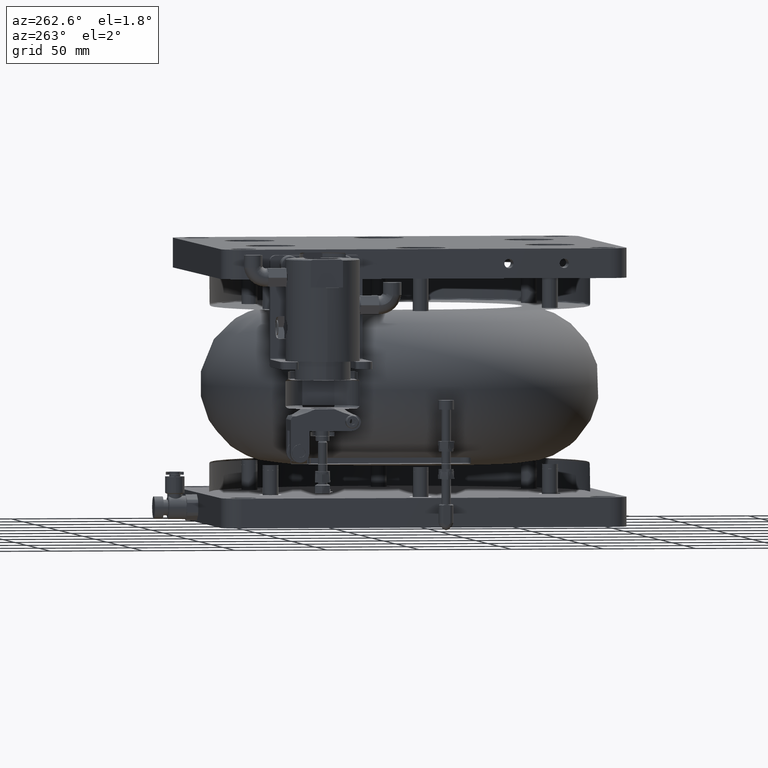
[diagram: clean part render]
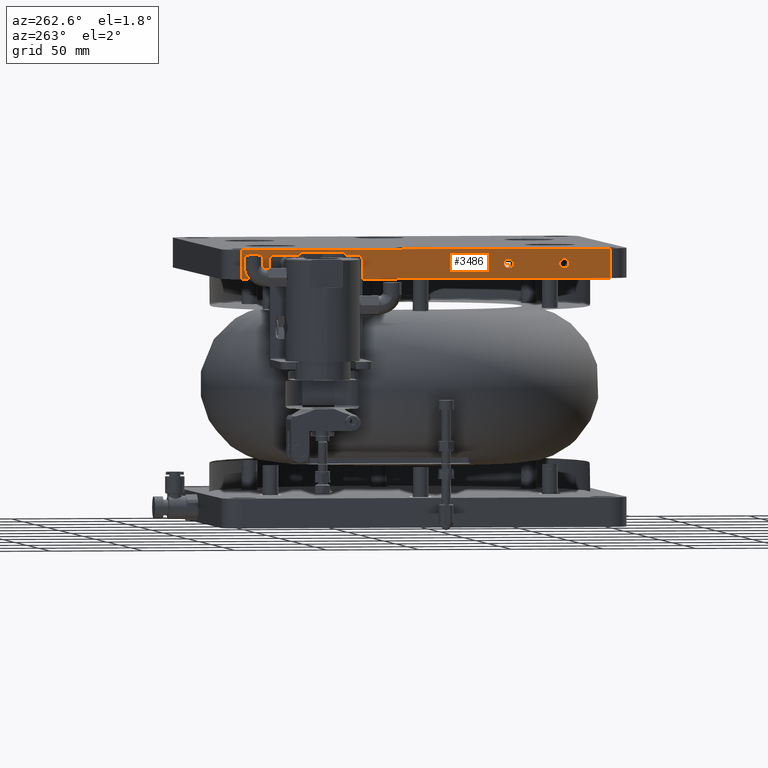
[diagram: same view with one face highlighted and labeled with its STEP entity id]
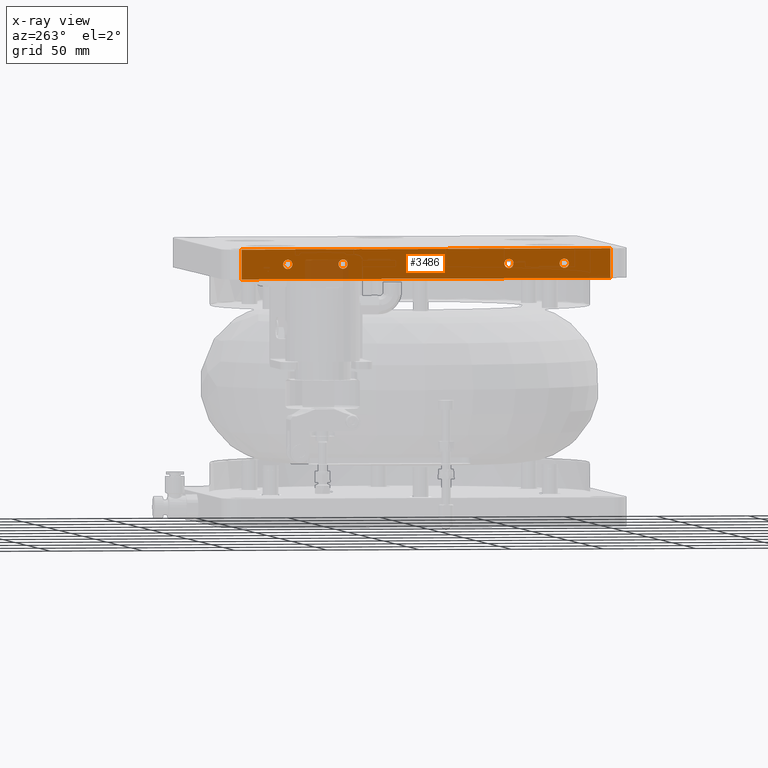
[diagram: x-ray of the same camera — body ghosted, the highlighted face saturated]
A machine part, auxiliary view. The second image highlights one B-rep face of the part: STEP entity #3486.
The next image is the same camera in x-ray: the body ghosted, the highlighted face saturated — about 7% of this face is hidden behind the body in this view.
In plain terms, the highlighted planar face has unit normal (1, -0, 0).
Its self-contained STEP definition (entity closure, byte-faithful):
#121 = CARTESIAN_POINT ( 'NONE',  ( 19.30947851368255641, 50.11317686325924825, 233.4140638059877801 ) ) ;
#206 = CARTESIAN_POINT ( 'NONE',  ( 19.30947851368256352, 18.00561458999934672, 233.0507514968320777 ) ) ;
#267 = CARTESIAN_POINT ( 'NONE',  ( 19.30947851368255996, 49.45413560931455521, 233.4999999999999716 ) ) ;
#509 = CARTESIAN_POINT ( 'NONE',  ( 19.30947851368255996, 49.06109445693029869, 228.5219411559180287 ) ) ;
#661 = CARTESIAN_POINT ( 'NONE',  ( 19.30947851368256707, 48.82930578161168711, 233.4414902508853231 ) ) ;
#957 = VERTEX_POINT ( 'NONE', #18538 ) ;
#969 = B_SPLINE_CURVE_WITH_KNOTS ( 'NONE', 3,
 ( #267, #22891, #9282, #121, #23033, #11493, #20522, #4433, #8992, #27337, #2636, #18446, #27479, #7056, #16101, #13436, #2210, #11641, #7208, #15666, #16253, #24824, #29265, #15955, #4571, #13580, #29125, #13716, #11064, #20093, #17878, #22591, #2348, #6913, #20383, #9139, #18172, #3222 ),
 .UNSPECIFIED., .F., .F.,
 ( 4, 1, 1, 1, 2, 2, 2, 1, 1, 1, 2, 2, 2, 1, 1, 1, 2, 2, 2, 1, 1, 1, 2, 2, 4 ),
 ( 0.000000000000000000, 0.06249999999994840238, 0.09374999999992501831, 0.1093749999999148598, 0.1171874999999115846, 0.1249999999999082956, 0.2499999999998885336, 0.3124999999998786526, 0.3437499999998787636, 0.3593749999998781530, 0.3671874999998778755, 0.3749999999998775979, 0.4999999999998883116, 0.5624999999998990807, 0.5937499999999097389, 0.6093749999999207301, 0.6171874999999262812, 0.6249999999999317213, 0.7499999999999477085, 0.8124999999999591438, 0.8437499999999639178, 0.8593749999999685807, 0.8671874999999721334, 0.8749999999999755751, 1.000000000000000000 ),
 .UNSPECIFIED. ) ;
#1002 = VERTEX_POINT ( 'NONE', #12223 ) ;
#1393 = EDGE_LOOP ( 'NONE', ( #20193, #15845 ) ) ;
#1410 = CARTESIAN_POINT ( 'NONE',  ( 19.30947851368255996, 17.25376832774467672, 229.8071481931501694 ) ) ;
#1624 = EDGE_LOOP ( 'NONE', ( #2880, #6476 ) ) ;
#1705 = CARTESIAN_POINT ( 'NONE',  ( 19.30947851368255641, 18.66389602267926406, 228.6275329687733802 ) ) ;
#1770 = CARTESIAN_POINT ( 'NONE',  ( 19.30947851368255641, 20.41437650170484730, 228.6916637950363338 ) ) ;
#1968 = VECTOR ( 'NONE', #18862, 1000.000000000000000 ) ;
#2002 = CARTESIAN_POINT ( 'NONE',  ( 19.30947851368255996, 49.45413560931455521, 228.5000000000000284 ) ) ;
#2068 = CARTESIAN_POINT ( 'NONE',  ( 19.30947851368255641, 21.50488710613811350, 232.4485210193081457 ) ) ;
#2210 = CARTESIAN_POINT ( 'NONE',  ( 19.30947851368255996, 51.77129686320302682, 231.9386890552908085 ) ) ;
#2301 = EDGE_CURVE ( 'NONE', #1002, #1002, #9379, .T. ) ;
#2348 = CARTESIAN_POINT ( 'NONE',  ( 19.30947851368256352, 50.45392671428960085, 228.7084817082761958 ) ) ;
#2374 = EDGE_CURVE ( 'NONE', #23480, #23480, #4196, .T. ) ;
#2445 = CARTESIAN_POINT ( 'NONE',  ( 19.30947851368255996, 47.01271287637676721, 230.3749997282811819 ) ) ;
#2589 = CARTESIAN_POINT ( 'NONE',  ( 19.30947851368256352, 48.26128380247481431, 233.2003672815800144 ) ) ;
#2598 = VERTEX_POINT ( 'NONE', #2002 ) ;
#2636 = CARTESIAN_POINT ( 'NONE',  ( 19.30947851368256352, 51.34384345879289668, 232.6458785750947129 ) ) ;
#2871 = CARTESIAN_POINT ( 'NONE',  ( 19.30947851368255996, 47.10153722396352549, 231.8460421177842647 ) ) ;
#2880 = ORIENTED_EDGE ( 'NONE', *, *, #24418, .F. ) ;
#2918 = PLANE ( 'NONE',  #15072 ) ;
#3222 = CARTESIAN_POINT ( 'NONE',  ( 19.30947851368255996, 49.45413560931455521, 228.5000000000000284 ) ) ;
#3341 = CARTESIAN_POINT ( 'NONE',  ( 19.30947851368255996, -25.54586439068544479, 223.0000000000000000 ) ) ;
#3382 = VECTOR ( 'NONE', #11846, 1000.000000000000000 ) ;
#3486 = ADVANCED_FACE ( 'NONE', ( #19035, #14002, #14596, #5423, #23025 ), #2918, .F. ) ;
#3613 = CARTESIAN_POINT ( 'NONE',  ( 19.30947851368255996, 49.45413560931455521, 233.4999999999999716 ) ) ;
#3924 = CARTESIAN_POINT ( 'NONE',  ( 19.30947851368255996, 17.14579940435277194, 230.0397591076089441 ) ) ;
#3952 = LINE ( 'NONE', #10877, #24827 ) ;
#3990 = CARTESIAN_POINT ( 'NONE',  ( 19.30947851368255996, 20.24437519594165380, 233.3724670312266767 ) ) ;
#4196 = CIRCLE ( 'NONE', #24963, 2.500000000000002220 ) ;
#4282 = CARTESIAN_POINT ( 'NONE',  ( 19.30947851368255996, 20.39283531735738464, 228.6828429659833830 ) ) ;
#4433 = CARTESIAN_POINT ( 'NONE',  ( 19.30947851368256352, 50.35433229410531908, 233.3323996541684835 ) ) ;
#4475 = VERTEX_POINT ( 'NONE', #26631 ) ;
#4571 = CARTESIAN_POINT ( 'NONE',  ( 19.30947851368255641, 51.79301340362533068, 230.1167972047922206 ) ) ;
#4663 = CARTESIAN_POINT ( 'NONE',  ( 19.30947851368255996, 48.57091219476468780, 228.6611303637727985 ) ) ;
#4790 = CARTESIAN_POINT ( 'NONE',  ( 19.30947851368256352, 18.49389471692356679, 233.3083362049629272 ) ) ;
#4805 = CARTESIAN_POINT ( 'NONE',  ( 19.30947851368256352, 46.95410192432458274, 231.1587786081632032 ) ) ;
#4867 = DIRECTION ( 'NONE',  ( 0.000000000000000000, 0.000000000000000000, 1.000000000000000000 ) ) ;
#4948 = CARTESIAN_POINT ( 'NONE',  ( 19.30947851368256707, 47.44259190059813136, 232.5238851599268628 ) ) ;
#5165 = CARTESIAN_POINT ( 'NONE',  ( 19.30947851368255996, 74.45413560931457653, 239.0000000000000568 ) ) ;
#5423 = FACE_BOUND ( 'NONE', #1624, .T. ) ;
#5522 = EDGE_LOOP ( 'NONE', ( #10911 ) ) ;
#6040 = CARTESIAN_POINT ( 'NONE',  ( 19.30947851368255996, 19.77221984570731905, 228.5000000000000284 ) ) ;
#6058 = AXIS2_PLACEMENT_3D ( 'NONE', #11950, #27349, #4867 ) ;
#6117 = CARTESIAN_POINT ( 'NONE',  ( 19.30947851368256352, 17.01271287637675655, 230.3749997282812672 ) ) ;
#6268 = CARTESIAN_POINT ( 'NONE',  ( 19.30947851368255996, 18.60805424827017518, 228.6474171413240697 ) ) ;
#6411 = CARTESIAN_POINT ( 'NONE',  ( 19.30947851368256707, 17.93025044937238732, 228.9884562912988883 ) ) ;
#6476 = ORIENTED_EDGE ( 'NONE', *, *, #23705, .F. ) ;
#6627 = CARTESIAN_POINT ( 'NONE',  ( 19.30947851368255996, 20.64698741615999111, 228.7996327184199288 ) ) ;
#6709 = CARTESIAN_POINT ( 'NONE',  ( 19.30947851368255996, 19.13605137291327551, 233.4999999999999716 ) ) ;
#6913 = CARTESIAN_POINT ( 'NONE',  ( 19.30947851368255996, 50.41437650170733775, 228.6916637950378117 ) ) ;
#7004 = CARTESIAN_POINT ( 'NONE',  ( 19.30947851368255641, 47.04002759177729587, 231.6589295104382984 ) ) ;
#7013 = EDGE_LOOP ( 'NONE', ( #9242, #19121, #12182, #12992 ) ) ;
#7056 = CARTESIAN_POINT ( 'NONE',  ( 19.30947851368255996, 51.71974366563497227, 232.0586625179339251 ) ) ;
#7208 = CARTESIAN_POINT ( 'NONE',  ( 19.30947851368255641, 51.95406823933451790, 231.3175572163092681 ) ) ;
#7450 = CARTESIAN_POINT ( 'NONE',  ( 19.30947851368256352, 48.66389602267922498, 228.6275329687733802 ) ) ;
#7950 = EDGE_LOOP ( 'NONE', ( #29221 ) ) ;
#8271 = CARTESIAN_POINT ( 'NONE',  ( 19.30947851368256352, 21.76247181427632782, 231.9602408923901464 ) ) ;
#8410 = CARTESIAN_POINT ( 'NONE',  ( 19.30947851368256352, 19.61299935538736960, 233.4999999999999716 ) ) ;
#8558 = CARTESIAN_POINT ( 'NONE',  ( 19.30947851368256352, 21.10001418441022381, 229.1102921505137715 ) ) ;
#8782 = CARTESIAN_POINT ( 'NONE',  ( 19.30947851368256707, 18.51543590127229066, 233.3171570340167023 ) ) ;
#8992 = CARTESIAN_POINT ( 'NONE',  ( 19.30947851368256707, 50.69501380904192445, 233.1976083284577896 ) ) ;
#9092 = CARTESIAN_POINT ( 'NONE',  ( 19.30947851368255641, 48.51543590127225514, 233.3171570340166170 ) ) ;
#9139 = CARTESIAN_POINT ( 'NONE',  ( 19.30947851368256352, 50.07896543701741621, 228.5585097491146769 ) ) ;
#9242 = ORIENTED_EDGE ( 'NONE', *, *, #26102, .F. ) ;
#9282 = CARTESIAN_POINT ( 'NONE',  ( 19.30947851368256352, 49.84717676168005340, 233.4780588440820281 ) ) ;
#9371 = CARTESIAN_POINT ( 'NONE',  ( 19.30947851368255996, 49.45413560931455521, 228.5000000000000284 ) ) ;
#9379 = CIRCLE ( 'NONE', #6058, 2.500000000000002220 ) ;
#9670 = CARTESIAN_POINT ( 'NONE',  ( 19.30947851368255996, 47.13697435542612624, 230.0613109447086799 ) ) ;
#10569 = CARTESIAN_POINT ( 'NONE',  ( 19.30947851368255996, 19.29527186323103294, 228.5000000000000568 ) ) ;
#10699 = CARTESIAN_POINT ( 'NONE',  ( 19.30947851368255996, 19.45413560931458363, 228.5000000000000284 ) ) ;
#10877 = CARTESIAN_POINT ( 'NONE',  ( 19.30947851368255996, -125.5458643906854377, 239.0000000000000568 ) ) ;
#10911 = ORIENTED_EDGE ( 'NONE', *, *, #2301, .F. ) ;
#11064 = CARTESIAN_POINT ( 'NONE',  ( 19.30947851368256707, 51.10001418442063681, 229.1102921505197401 ) ) ;
#11138 = CARTESIAN_POINT ( 'NONE',  ( 19.30947851368256707, 18.39547309137767073, 233.2656080563241119 ) ) ;
#11282 = CARTESIAN_POINT ( 'NONE',  ( 19.30947851368255996, 17.44259190061283604, 232.5238851599326040 ) ) ;
#11383 = B_SPLINE_CURVE_WITH_KNOTS ( 'NONE', 3,
 ( #12639, #10569, #21959, #17667, #1705, #6268, #19868, #28911, #26693, #6411, #28317, #21660, #1410, #19587, #24320, #3924, #26399, #6117, #15158, #24176, #19726, #28761, #17520, #15306, #27411, #15597, #22531, #11282, #13655, #206, #20313, #11138, #25041, #4790, #8782, #13514, #6709, #25194 ),
 .UNSPECIFIED., .F., .F.,
 ( 4, 1, 1, 1, 2, 2, 2, 1, 1, 1, 2, 2, 2, 1, 1, 1, 2, 2, 2, 1, 1, 1, 2, 2, 4 ),
 ( 0.000000000000000000, 0.06250000000001977585, 0.09375000000002929601, 0.1093750000000318634, 0.1171875000000355688, 0.1250000000000392741, 0.2500000000000890954, 0.3125000000001175726, 0.3437500000001271760, 0.3593750000001274536, 0.3671875000001230127, 0.3750000000001185163, 0.5000000000000849321, 0.5625000000000627276, 0.5937500000000459632, 0.6093750000000376366, 0.6171875000000334177, 0.6250000000000291989, 0.7500000000000465183, 0.8125000000000552891, 0.8437500000000601741, 0.8593750000000601741, 0.8671875000000596190, 0.8750000000000591749, 1.000000000000000000 ),
 .UNSPECIFIED. ) ;
#11447 = CARTESIAN_POINT ( 'NONE',  ( 19.30947851368257062, 47.25652728086922139, 232.2408781997308438 ) ) ;
#11493 = CARTESIAN_POINT ( 'NONE',  ( 19.30947851368256352, 50.30021697035400052, 233.3525828586759872 ) ) ;
#11555 = CARTESIAN_POINT ( 'NONE',  ( 19.30947851368255996, -135.5458643906854377, 239.0000000000000568 ) ) ;
#11590 = CARTESIAN_POINT ( 'NONE',  ( 19.30947851368255996, 48.39547309138327336, 233.2656080563263004 ) ) ;
#11641 = CARTESIAN_POINT ( 'NONE',  ( 19.30947851368255641, 51.89555834225238584, 231.6250002717273730 ) ) ;
#11736 = CARTESIAN_POINT ( 'NONE',  ( 19.30947851368255996, 48.60805424827018584, 228.6474171413240128 ) ) ;
#11811 = EDGE_CURVE ( 'NONE', #22264, #4475, #18659, .T. ) ;
#11846 = DIRECTION ( 'NONE',  ( -0.000000000000000000, -1.000000000000000000, -0.000000000000000000 ) ) ;
#11883 = CARTESIAN_POINT ( 'NONE',  ( 19.30947851368255996, 49.29527186323102228, 228.5000000000000000 ) ) ;
#11950 = CARTESIAN_POINT ( 'NONE',  ( 19.30947851368255996, -100.5458643906854235, 231.0000000000000000 ) ) ;
#12182 = ORIENTED_EDGE ( 'NONE', *, *, #22503, .F. ) ;
#12215 = DIRECTION ( 'NONE',  ( 0.000000000000000000, 0.000000000000000000, -1.000000000000000000 ) ) ;
#12223 = CARTESIAN_POINT ( 'NONE',  ( 19.30947851368255996, -100.5458643906854235, 233.5000000000000000 ) ) ;
#12639 = CARTESIAN_POINT ( 'NONE',  ( 19.30947851368255996, 19.45413560931458363, 228.5000000000000284 ) ) ;
#12992 = ORIENTED_EDGE ( 'NONE', *, *, #20312, .F. ) ;
#13000 = CARTESIAN_POINT ( 'NONE',  ( 19.30947851368256707, 21.95416929430458453, 230.8412213918346652 ) ) ;
#13136 = CARTESIAN_POINT ( 'NONE',  ( 19.30947851368256352, 20.30021697035401829, 233.3525828586759872 ) ) ;
#13163 = DIRECTION ( 'NONE',  ( -0.000000000000000000, -0.000000000000000000, 1.000000000000000000 ) ) ;
#13286 = CARTESIAN_POINT ( 'NONE',  ( 19.30947851368256352, 21.34384345879290734, 232.6458785750946845 ) ) ;
#13436 = CARTESIAN_POINT ( 'NONE',  ( 19.30947851368255996, 51.76247181427631716, 231.9602408923901464 ) ) ;
#13514 = CARTESIAN_POINT ( 'NONE',  ( 19.30947851368256352, 18.82930578161171553, 233.4414902508852947 ) ) ;
#13580 = CARTESIAN_POINT ( 'NONE',  ( 19.30947851368255996, 51.78653526348230685, 230.0998033152069411 ) ) ;
#13655 = CARTESIAN_POINT ( 'NONE',  ( 19.30947851368256352, 17.80825703421589168, 232.8897078494832158 ) ) ;
#13669 = CARTESIAN_POINT ( 'NONE',  ( 19.30947851368255996, 49.45413560931455521, 233.4999999999999716 ) ) ;
#13716 = CARTESIAN_POINT ( 'NONE',  ( 19.30947851368256707, 51.46567931800154838, 229.4761148400615127 ) ) ;
#13820 = CARTESIAN_POINT ( 'NONE',  ( 19.30947851368255996, 47.11525781500382237, 231.8832027952098258 ) ) ;
#13993 = CARTESIAN_POINT ( 'NONE',  ( 19.30947851368255996, 19.45413560931458363, 233.4999999999999716 ) ) ;
#14002 = FACE_BOUND ( 'NONE', #5522, .T. ) ;
#14434 = LINE ( 'NONE', #3341, #1968 ) ;
#14454 = CARTESIAN_POINT ( 'NONE',  ( 19.30947851368255996, -135.5458643906854377, 239.0000000000000568 ) ) ;
#14596 = FACE_BOUND ( 'NONE', #7950, .T. ) ;
#15072 = AXIS2_PLACEMENT_3D ( 'NONE', #14454, #23473, #12215 ) ;
#15078 = CARTESIAN_POINT ( 'NONE',  ( 19.30947851368255996, 21.65174393776251804, 229.7591218002806386 ) ) ;
#15158 = CARTESIAN_POINT ( 'NONE',  ( 19.30947851368256352, 16.95420297929463871, 230.6824427836520499 ) ) ;
#15184 = EDGE_CURVE ( 'NONE', #2598, #17718, #27517, .T. ) ;
#15231 = CARTESIAN_POINT ( 'NONE',  ( 19.30947851368256352, 21.79301340362533068, 230.1167972047896626 ) ) ;
#15306 = CARTESIAN_POINT ( 'NONE',  ( 19.30947851368255996, 17.10153722396348286, 231.8460421177891533 ) ) ;
#15399 = CARTESIAN_POINT ( 'NONE',  ( 19.30947851368255641, 74.45413560931459074, 239.0000000000000568 ) ) ;
#15520 = CARTESIAN_POINT ( 'NONE',  ( 19.30947851368255286, 21.89555834225237874, 231.6250002717273162 ) ) ;
#15597 = CARTESIAN_POINT ( 'NONE',  ( 19.30947851368255996, 17.12173595514474655, 231.9001966847904725 ) ) ;
#15666 = CARTESIAN_POINT ( 'NONE',  ( 19.30947851368256352, 51.95416929430459874, 230.8412213918454654 ) ) ;
#15670 = CARTESIAN_POINT ( 'NONE',  ( 19.30947851368255996, 20.45392671428482245, 228.7084817082734105 ) ) ;
#15845 = ORIENTED_EDGE ( 'NONE', *, *, #29246, .F. ) ;
#15910 = CARTESIAN_POINT ( 'NONE',  ( 19.30947851368256707, 46.95420297929465647, 230.6824427836737357 ) ) ;
#15951 = VERTEX_POINT ( 'NONE', #10699 ) ;
#15955 = CARTESIAN_POINT ( 'NONE',  ( 19.30947851368256352, 51.80673399466564888, 230.1539578822198280 ) ) ;
#16101 = CARTESIAN_POINT ( 'NONE',  ( 19.30947851368255996, 51.74565390103754225, 231.9997911049698587 ) ) ;
#16201 = CARTESIAN_POINT ( 'NONE',  ( 19.30947851368255641, 47.12173595514533986, 231.9001966847905294 ) ) ;
#16253 = CARTESIAN_POINT ( 'NONE',  ( 19.30947851368255996, 51.93225340212908492, 230.6071078389913680 ) ) ;
#16346 = CARTESIAN_POINT ( 'NONE',  ( 19.30947851368255996, 47.80825703422328132, 232.8897078494860864 ) ) ;
#17443 = CARTESIAN_POINT ( 'NONE',  ( 19.30947851368255996, 21.80673399466564888, 230.1539578822147689 ) ) ;
#17520 = CARTESIAN_POINT ( 'NONE',  ( 19.30947851368256352, 17.08164278801742242, 231.7901744029233555 ) ) ;
#17588 = CARTESIAN_POINT ( 'NONE',  ( 19.30947851368255996, 21.82662843061170932, 230.2098255970832383 ) ) ;
#17667 = CARTESIAN_POINT ( 'NONE',  ( 19.30947851368255996, 18.79509435535575435, 228.5859361940121630 ) ) ;
#17718 = VERTEX_POINT ( 'NONE', #3613 ) ;
#17741 = CARTESIAN_POINT ( 'NONE',  ( 19.30947851368255996, 20.69501380904191734, 233.1976083284577896 ) ) ;
#17878 = CARTESIAN_POINT ( 'NONE',  ( 19.30947851368256352, 50.64698741617365130, 228.7996327184277163 ) ) ;
#17881 = CARTESIAN_POINT ( 'NONE',  ( 19.30947851368255641, 21.65450289088430580, 232.1928518068441463 ) ) ;
#18170 = B_SPLINE_CURVE_WITH_KNOTS ( 'NONE', 3,
 ( #24251, #8410, #26760, #26324, #3990, #13136, #29130, #22164, #17741, #22317, #13286, #2068, #17881, #24530, #24683, #8271, #28542, #15520, #24389, #13000, #28832, #19944, #17588, #17443, #15231, #22023, #15078, #26907, #8558, #19791, #6627, #28982, #15670, #1770, #4282, #26469, #6040, #26620 ),
 .UNSPECIFIED., .F., .F.,
 ( 4, 1, 1, 1, 2, 2, 2, 1, 1, 1, 2, 2, 2, 1, 1, 1, 2, 2, 2, 1, 1, 1, 2, 2, 4 ),
 ( 0.000000000000000000, 0.06249999999994690358, 0.09374999999992071620, 0.1093749999999098221, 0.1171874999999068245, 0.1249999999999038269, 0.2499999999998874234, 0.3124999999998792077, 0.3437499999998794298, 0.3593749999998792632, 0.3671874999998792077, 0.3749999999998790967, 0.4999999999998852029, 0.5624999999998827604, 0.5937499999998762101, 0.6093749999998675504, 0.6171874999998684386, 0.6249999999998693268, 0.7499999999999189537, 0.8124999999999401590, 0.8437499999999513722, 0.8593749999999574785, 0.8671874999999625855, 0.8749999999999676925, 1.000000000000000000 ),
 .UNSPECIFIED. ) ;
#18172 = CARTESIAN_POINT ( 'NONE',  ( 19.30947851368255996, 49.77221984571585267, 228.5000000000000000 ) ) ;
#18261 = CARTESIAN_POINT ( 'NONE',  ( 19.30947851368257062, 47.56442775983323656, 229.3541214249084135 ) ) ;
#18397 = CARTESIAN_POINT ( 'NONE',  ( 19.30947851368255286, 46.97601781650003971, 231.3928921610236671 ) ) ;
#18446 = CARTESIAN_POINT ( 'NONE',  ( 19.30947851368255996, 51.50488710613808507, 232.4485210193081173 ) ) ;
#18538 = CARTESIAN_POINT ( 'NONE',  ( 19.30947851368255996, -125.5458643906854377, 223.0000000000000000 ) ) ;
#18659 = LINE ( 'NONE', #11555, #3382 ) ;
#18862 = DIRECTION ( 'NONE',  ( 0.000000000000000000, 1.000000000000000000, 0.000000000000000000 ) ) ;
#19035 = FACE_OUTER_BOUND ( 'NONE', #7013, .T. ) ;
#19121 = ORIENTED_EDGE ( 'NONE', *, *, #11811, .F. ) ;
#19587 = CARTESIAN_POINT ( 'NONE',  ( 19.30947851368256352, 17.18852755299406709, 229.9413374820628633 ) ) ;
#19632 = DIRECTION ( 'NONE',  ( -1.000000000000000000, -0.000000000000000000, -0.000000000000000000 ) ) ;
#19726 = CARTESIAN_POINT ( 'NONE',  ( 19.30947851368256352, 16.97601781650003616, 231.3928921610424254 ) ) ;
#19791 = CARTESIAN_POINT ( 'NONE',  ( 19.30947851368255996, 20.90265662862447371, 228.9492485031626074 ) ) ;
#19868 = CARTESIAN_POINT ( 'NONE',  ( 19.30947851368256352, 18.57091219476464161, 228.6611303637727701 ) ) ;
#19944 = CARTESIAN_POINT ( 'NONE',  ( 19.30947851368256352, 21.86824362685186429, 230.3410704895587742 ) ) ;
#20093 = CARTESIAN_POINT ( 'NONE',  ( 19.30947851368256352, 50.90265662864267426, 228.9492485031730951 ) ) ;
#20193 = ORIENTED_EDGE ( 'NONE', *, *, #15184, .F. ) ;
#20312 = EDGE_CURVE ( 'NONE', #957, #22614, #14434, .T. ) ;
#20313 = CARTESIAN_POINT ( 'NONE',  ( 19.30947851368255641, 18.26128380246515093, 233.2003672815761206 ) ) ;
#20383 = CARTESIAN_POINT ( 'NONE',  ( 19.30947851368255996, 50.39283531735684818, 228.6828429659833546 ) ) ;
#20477 = CARTESIAN_POINT ( 'NONE',  ( 19.30947851368256352, 47.16261731759021103, 230.0002088950316192 ) ) ;
#20522 = CARTESIAN_POINT ( 'NONE',  ( 19.30947851368255286, 50.33735902386185757, 233.3388696362272583 ) ) ;
#20617 = CARTESIAN_POINT ( 'NONE',  ( 19.30947851368255996, 48.45434450434631657, 233.2915182917265327 ) ) ;
#20763 = CARTESIAN_POINT ( 'NONE',  ( 19.30947851368255641, 48.79509435535581474, 228.5859361940121346 ) ) ;
#20915 = CARTESIAN_POINT ( 'NONE',  ( 19.30947851368255641, 49.13605137291322933, 233.4999999999999716 ) ) ;
#21316 = VERTEX_POINT ( 'NONE', #13993 ) ;
#21660 = CARTESIAN_POINT ( 'NONE',  ( 19.30947851368255641, 17.40338411249082284, 229.5514789806841236 ) ) ;
#21959 = CARTESIAN_POINT ( 'NONE',  ( 19.30947851368255996, 19.06109445693030580, 228.5219411559180003 ) ) ;
#22023 = CARTESIAN_POINT ( 'NONE',  ( 19.30947851368256352, 21.78653526348363911, 230.0998033152087885 ) ) ;
#22164 = CARTESIAN_POINT ( 'NONE',  ( 19.30947851368256352, 20.35433229410531908, 233.3323996541684835 ) ) ;
#22264 = VERTEX_POINT ( 'NONE', #5165 ) ;
#22317 = CARTESIAN_POINT ( 'NONE',  ( 19.30947851368255996, 20.97802076925698955, 233.0115437087098087 ) ) ;
#22503 = EDGE_CURVE ( 'NONE', #22614, #22264, #24125, .T. ) ;
#22531 = CARTESIAN_POINT ( 'NONE',  ( 19.30947851368256352, 17.25652728087873200, 232.2408781997314975 ) ) ;
#22591 = CARTESIAN_POINT ( 'NONE',  ( 19.30947851368256352, 50.51279812725712048, 228.7343919436781334 ) ) ;
#22614 = VERTEX_POINT ( 'NONE', #23213 ) ;
#22690 = CARTESIAN_POINT ( 'NONE',  ( 19.30947851368255996, 47.93025044937826351, 228.9884562912841659 ) ) ;
#22841 = CARTESIAN_POINT ( 'NONE',  ( 19.30947851368255996, 48.00561459001226439, 233.0507514968371368 ) ) ;
#22891 = CARTESIAN_POINT ( 'NONE',  ( 19.30947851368256352, 49.61299935538738026, 233.4999999999999716 ) ) ;
#22984 = CARTESIAN_POINT ( 'NONE',  ( 19.30947851368255996, 48.21325740957181694, 228.8023916715576149 ) ) ;
#23025 = FACE_BOUND ( 'NONE', #1393, .T. ) ;
#23033 = CARTESIAN_POINT ( 'NONE',  ( 19.30947851368255996, 50.24437519594164314, 233.3724670312266483 ) ) ;
#23126 = CARTESIAN_POINT ( 'NONE',  ( 19.30947851368255996, 47.18852755299187862, 229.9413374820684339 ) ) ;
#23213 = CARTESIAN_POINT ( 'NONE',  ( 19.30947851368255996, 74.45413560931459074, 223.0000000000000000 ) ) ;
#23473 = DIRECTION ( 'NONE',  ( 1.000000000000000000, -0.000000000000000000, 0.000000000000000000 ) ) ;
#23480 = VERTEX_POINT ( 'NONE', #25989 ) ;
#23705 = EDGE_CURVE ( 'NONE', #21316, #15951, #18170, .T. ) ;
#24125 = LINE ( 'NONE', #15399, #27598 ) ;
#24176 = CARTESIAN_POINT ( 'NONE',  ( 19.30947851368257062, 16.95410192432455787, 231.1587786081740887 ) ) ;
#24251 = CARTESIAN_POINT ( 'NONE',  ( 19.30947851368255996, 19.45413560931458363, 233.4999999999999716 ) ) ;
#24320 = CARTESIAN_POINT ( 'NONE',  ( 19.30947851368255996, 17.16261731759151488, 230.0002088950281802 ) ) ;
#24389 = CARTESIAN_POINT ( 'NONE',  ( 19.30947851368255996, 21.95406823933450369, 231.3175572163308118 ) ) ;
#24418 = EDGE_CURVE ( 'NONE', #15951, #21316, #11383, .T. ) ;
#24530 = CARTESIAN_POINT ( 'NONE',  ( 19.30947851368255996, 21.71974366563497938, 232.0586625179338398 ) ) ;
#24683 = CARTESIAN_POINT ( 'NONE',  ( 19.30947851368256352, 21.74565390103755647, 231.9997911049698018 ) ) ;
#24824 = CARTESIAN_POINT ( 'NONE',  ( 19.30947851368255996, 51.86824362685182166, 230.3410704895730134 ) ) ;
#24827 = VECTOR ( 'NONE', #26430, 1000.000000000000000 ) ;
#24918 = CARTESIAN_POINT ( 'NONE',  ( 19.30947851368255996, 47.08164278801744018, 231.7901744029150564 ) ) ;
#24963 = AXIS2_PLACEMENT_3D ( 'NONE', #26303, #19632, #28668 ) ;
#25041 = CARTESIAN_POINT ( 'NONE',  ( 19.30947851368255996, 18.45434450434293439, 233.2915182917251968 ) ) ;
#25057 = CARTESIAN_POINT ( 'NONE',  ( 19.30947851368256352, 48.55393892452478610, 228.6676003458306070 ) ) ;
#25194 = CARTESIAN_POINT ( 'NONE',  ( 19.30947851368255996, 19.45413560931458363, 233.4999999999999716 ) ) ;
#25496 = CARTESIAN_POINT ( 'NONE',  ( 19.30947851368255996, 47.25376832774089308, 229.8071481931598044 ) ) ;
#25989 = CARTESIAN_POINT ( 'NONE',  ( 19.30947851368255996, -70.54586439068542347, 233.5000000000000000 ) ) ;
#26102 = EDGE_CURVE ( 'NONE', #4475, #957, #3952, .T. ) ;
#26303 = CARTESIAN_POINT ( 'NONE',  ( 19.30947851368255996, -70.54586439068542347, 231.0000000000000000 ) ) ;
#26324 = CARTESIAN_POINT ( 'NONE',  ( 19.30947851368255996, 20.11317686325927667, 233.4140638059878654 ) ) ;
#26399 = CARTESIAN_POINT ( 'NONE',  ( 19.30947851368255641, 17.13697435542611913, 230.0613109447086799 ) ) ;
#26430 = DIRECTION ( 'NONE',  ( 0.000000000000000000, 0.000000000000000000, -1.000000000000000000 ) ) ;
#26469 = CARTESIAN_POINT ( 'NONE',  ( 19.30947851368255996, 20.07896543700886838, 228.5585097491146485 ) ) ;
#26620 = CARTESIAN_POINT ( 'NONE',  ( 19.30947851368255996, 19.45413560931458363, 228.5000000000000284 ) ) ;
#26631 = CARTESIAN_POINT ( 'NONE',  ( 19.30947851368255996, -125.5458643906854377, 239.0000000000000568 ) ) ;
#26693 = CARTESIAN_POINT ( 'NONE',  ( 19.30947851368256352, 18.21325740958653228, 228.8023916715519022 ) ) ;
#26760 = CARTESIAN_POINT ( 'NONE',  ( 19.30947851368255641, 19.84717676168003564, 233.4780588440819713 ) ) ;
#26907 = CARTESIAN_POINT ( 'NONE',  ( 19.30947851368256352, 21.46567931802236018, 229.4761148400734498 ) ) ;
#27148 = CARTESIAN_POINT ( 'NONE',  ( 19.30947851368256352, 47.14579940435211114, 230.0397591076108483 ) ) ;
#27289 = CARTESIAN_POINT ( 'NONE',  ( 19.30947851368255996, 47.40338411248573181, 229.5514789806971976 ) ) ;
#27337 = CARTESIAN_POINT ( 'NONE',  ( 19.30947851368256352, 50.97802076925702153, 233.0115437087098655 ) ) ;
#27349 = DIRECTION ( 'NONE',  ( -1.000000000000000000, -0.000000000000000000, -0.000000000000000000 ) ) ;
#27411 = CARTESIAN_POINT ( 'NONE',  ( 19.30947851368255286, 17.11525781500380461, 231.8832027952123838 ) ) ;
#27428 = CARTESIAN_POINT ( 'NONE',  ( 19.30947851368255996, 48.49389471692533249, 233.3083362049636094 ) ) ;
#27479 = CARTESIAN_POINT ( 'NONE',  ( 19.30947851368255996, 51.65450289088433777, 232.1928518068442315 ) ) ;
#27517 = B_SPLINE_CURVE_WITH_KNOTS ( 'NONE', 3,
 ( #9371, #11883, #509, #20763, #7450, #11736, #4663, #25057, #22984, #22690, #18261, #27289, #25496, #23126, #20477, #27148, #9670, #2445, #15910, #4805, #18397, #7004, #24918, #2871, #13820, #16201, #11447, #4948, #16346, #22841, #2589, #11590, #20617, #27428, #9092, #661, #20915, #13669 ),
 .UNSPECIFIED., .F., .F.,
 ( 4, 1, 1, 1, 2, 2, 2, 1, 1, 1, 2, 2, 2, 1, 1, 1, 2, 2, 2, 1, 1, 1, 2, 2, 4 ),
 ( 0.000000000000000000, 0.06250000000000369149, 0.09375000000000587030, 0.1093750000000053985, 0.1171875000000082573, 0.1250000000000111022, 0.2499999999999942268, 0.3124999999999821809, 0.3437499999999812372, 0.3593749999999767408, 0.3671874999999740208, 0.3749999999999712452, 0.4999999999999505951, 0.5624999999999457101, 0.5937499999999381606, 0.6093749999999400480, 0.6171874999999413802, 0.6249999999999427125, 0.7499999999999883427, 0.8125000000000146549, 0.8437500000000267564, 0.8593750000000293099, 0.8671875000000294209, 0.8750000000000295319, 1.000000000000000000 ),
 .UNSPECIFIED. ) ;
#27598 = VECTOR ( 'NONE', #13163, 1000.000000000000000 ) ;
#28317 = CARTESIAN_POINT ( 'NONE',  ( 19.30947851368256707, 17.56442775983612492, 229.3541214249011091 ) ) ;
#28542 = CARTESIAN_POINT ( 'NONE',  ( 19.30947851368255996, 21.77129686320301971, 231.9386890552908085 ) ) ;
#28668 = DIRECTION ( 'NONE',  ( 0.000000000000000000, 0.000000000000000000, 1.000000000000000000 ) ) ;
#28761 = CARTESIAN_POINT ( 'NONE',  ( 19.30947851368255996, 17.04002759177728521, 231.6589295104525377 ) ) ;
#28832 = CARTESIAN_POINT ( 'NONE',  ( 19.30947851368255996, 21.93225340212913110, 230.6071078389724107 ) ) ;
#28911 = CARTESIAN_POINT ( 'NONE',  ( 19.30947851368255996, 18.55393892452386240, 228.6676003458310049 ) ) ;
#28982 = CARTESIAN_POINT ( 'NONE',  ( 19.30947851368256352, 20.51279812724913043, 228.7343919436736428 ) ) ;
#29125 = CARTESIAN_POINT ( 'NONE',  ( 19.30947851368256352, 51.65174393778369222, 229.7591218003107656 ) ) ;
#29130 = CARTESIAN_POINT ( 'NONE',  ( 19.30947851368255286, 20.33735902386189665, 233.3388696362272299 ) ) ;
#29221 = ORIENTED_EDGE ( 'NONE', *, *, #2374, .F. ) ;
#29246 = EDGE_CURVE ( 'NONE', #17718, #2598, #969, .T. ) ;
#29265 = CARTESIAN_POINT ( 'NONE',  ( 19.30947851368255996, 51.82662843061171998, 230.2098255970915375 ) ) ;